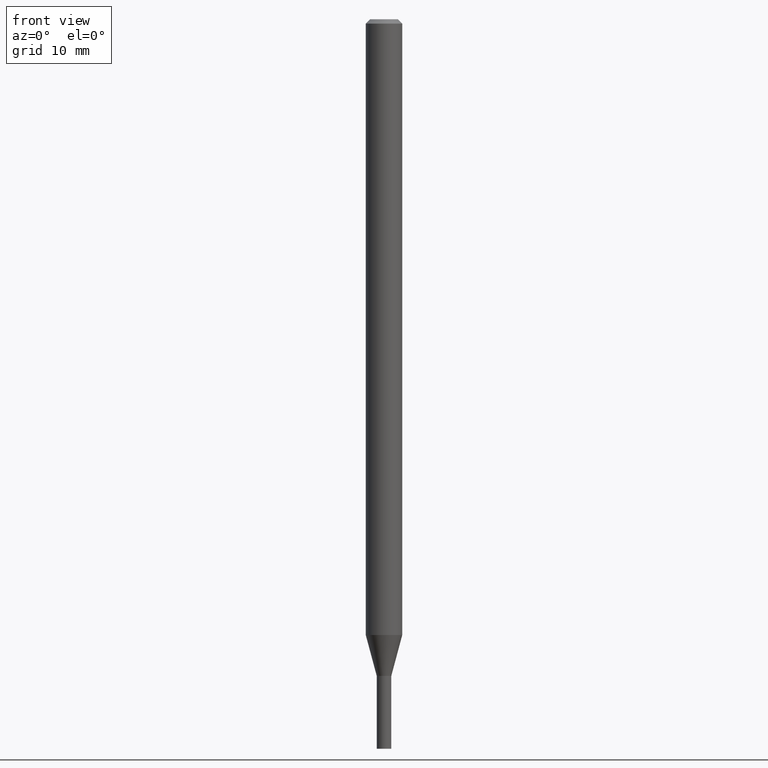
[diagram: clean part render]
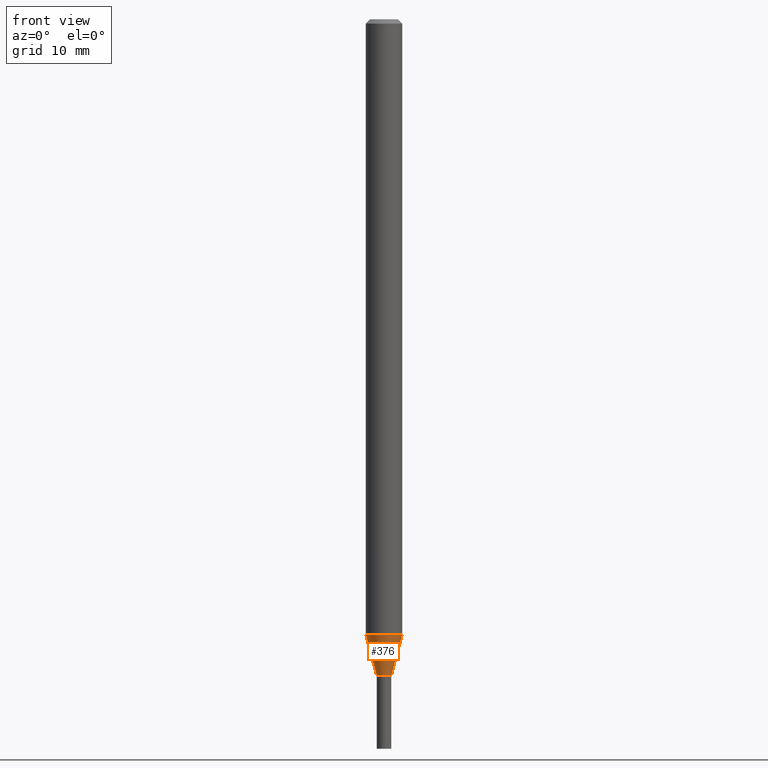
[diagram: same view with one face highlighted and labeled with its STEP entity id]
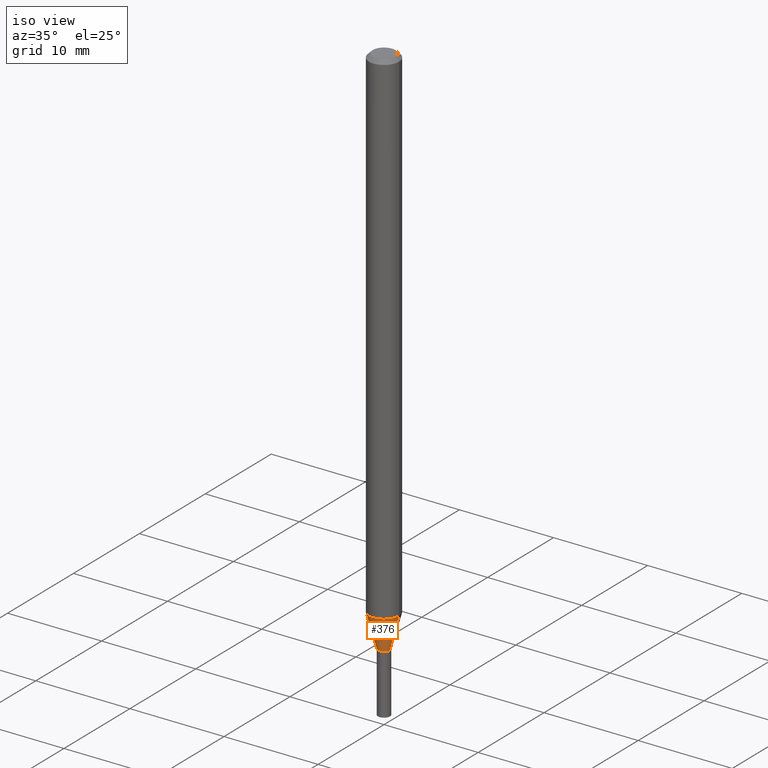
[diagram: same view with one face highlighted and labeled with its STEP entity id]
A machine part, front view. The second image highlights one B-rep face of the part: STEP entity #376.
A second angle (iso view) of the same face is appended — the face is thin or edge-on in the first view.
In plain terms, the highlighted conical surface has half-angle 15 deg.
Its self-contained STEP definition (entity closure, byte-faithful):
#11 = AXIS2_PLACEMENT_3D ( 'NONE', #255, #287, #69 ) ;
#25 = DIRECTION ( 'NONE',  ( 0.2588190451025209615, 1.565188264969624926E-15, 0.9659258262890682012 ) ) ;
#63 = DIRECTION ( 'NONE',  ( -0.2588190451025209615, 5.211531920934547097E-15, 0.9659258262890682012 ) ) ;
#69 = DIRECTION ( 'NONE',  ( 1.000000000000000000, -6.982962677686275388E-15, 0.000000000000000000 ) ) ;
#94 = ORIENTED_EDGE ( 'NONE', *, *, #214, .T. ) ;
#101 = CARTESIAN_POINT ( 'NONE',  ( 0.02500000000000020609, -8.030407079339236694E-15, -2.250000000000000000 ) ) ;
#106 = CARTESIAN_POINT ( 'NONE',  ( 0.02500000000000020609, -8.030407079339236694E-15, -2.250000000000000000 ) ) ;
#107 = AXIS2_PLACEMENT_3D ( 'NONE', #247, #325, #131 ) ;
#124 = CIRCLE ( 'NONE', #444, 0.02500000000000020609 ) ;
#131 = DIRECTION ( 'NONE',  ( 1.000000000000000000, -6.982962677686262766E-15, 0.000000000000000000 ) ) ;
#140 = VECTOR ( 'NONE', #25, 39.37007874015748143 ) ;
#170 = CARTESIAN_POINT ( 'NONE',  ( -0.06250000000000000000, -6.923104336912972739E-15, -2.110048094716168166 ) ) ;
#179 = VERTEX_POINT ( 'NONE', #101 ) ;
#185 = EDGE_LOOP ( 'NONE', ( #266, #94, #432, #194 ) ) ;
#194 = ORIENTED_EDGE ( 'NONE', *, *, #279, .F. ) ;
#206 = FACE_OUTER_BOUND ( 'NONE', #185, .T. ) ;
#211 = DIRECTION ( 'NONE',  ( 1.000000000000000000, -6.982962677686275388E-15, 0.000000000000000000 ) ) ;
#214 = EDGE_CURVE ( 'NONE', #263, #179, #124, .T. ) ;
#226 = VERTEX_POINT ( 'NONE', #419 ) ;
#247 = CARTESIAN_POINT ( 'NONE',  ( 5.160056795178769095E-29, -7.367193546763035355E-15, -2.110048094716168166 ) ) ;
#250 = DIRECTION ( 'NONE',  ( -2.445468806185136597E-29, 3.491481338843145583E-15, 1.000000000000000000 ) ) ;
#255 = CARTESIAN_POINT ( 'NONE',  ( 5.502304813916557343E-29, -7.855833012397078448E-15, -2.250000000000000000 ) ) ;
#261 = VERTEX_POINT ( 'NONE', #170 ) ;
#263 = VERTEX_POINT ( 'NONE', #352 ) ;
#266 = ORIENTED_EDGE ( 'NONE', *, *, #334, .F. ) ;
#279 = EDGE_CURVE ( 'NONE', #261, #226, #336, .T. ) ;
#287 = DIRECTION ( 'NONE',  ( -2.445468806185136597E-29, 3.491481338843145583E-15, 1.000000000000000000 ) ) ;
#292 = VECTOR ( 'NONE', #63, 39.37007874015748143 ) ;
#315 = LINE ( 'NONE', #453, #292 ) ;
#324 = LINE ( 'NONE', #106, #140 ) ;
#325 = DIRECTION ( 'NONE',  ( -2.445468806185136597E-29, 3.491481338843145583E-15, 1.000000000000000000 ) ) ;
#334 = EDGE_CURVE ( 'NONE', #263, #261, #315, .T. ) ;
#336 = CIRCLE ( 'NONE', #107, 0.06250000000000000000 ) ;
#352 = CARTESIAN_POINT ( 'NONE',  ( -0.02500000000000020609, -7.300650832685011808E-15, -2.250000000000000000 ) ) ;
#376 = ADVANCED_FACE ( 'NONE', ( #206 ), #413, .T. ) ;
#409 = EDGE_CURVE ( 'NONE', #179, #226, #324, .T. ) ;
#413 = CONICAL_SURFACE ( 'NONE', #11, 0.02500000000000020609, 0.2617993877991496299 ) ;
#419 = CARTESIAN_POINT ( 'NONE',  ( 0.06250000000000000000, -7.803628714118427025E-15, -2.110048094716168166 ) ) ;
#432 = ORIENTED_EDGE ( 'NONE', *, *, #409, .T. ) ;
#444 = AXIS2_PLACEMENT_3D ( 'NONE', #461, #250, #211 ) ;
#453 = CARTESIAN_POINT ( 'NONE',  ( -0.02500000000000020609, -7.678197328457052455E-15, -2.250000000000000000 ) ) ;
#461 = CARTESIAN_POINT ( 'NONE',  ( 5.502304813916557343E-29, -7.855833012397078448E-15, -2.250000000000000000 ) ) ;